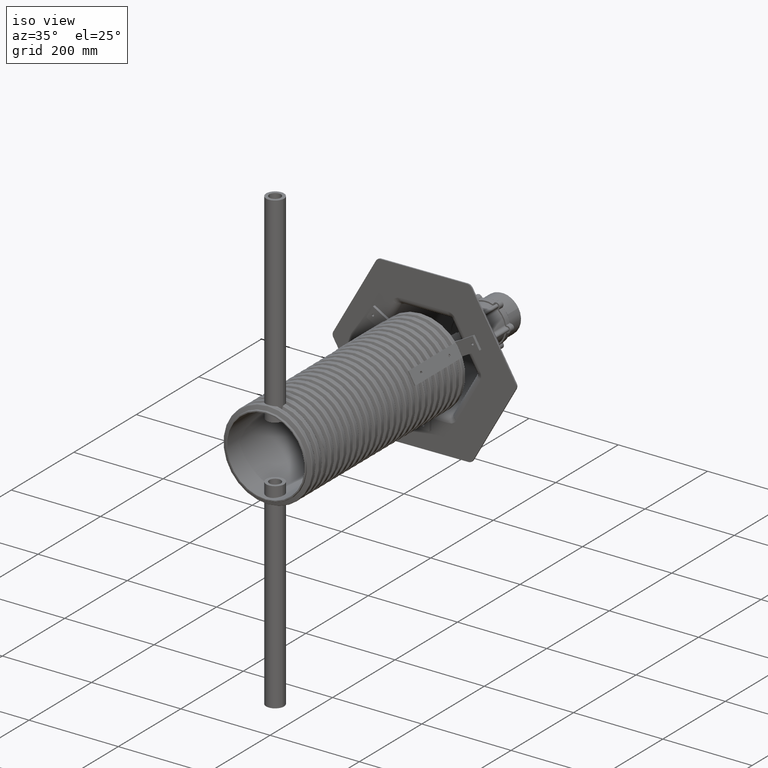
[diagram: clean part render]
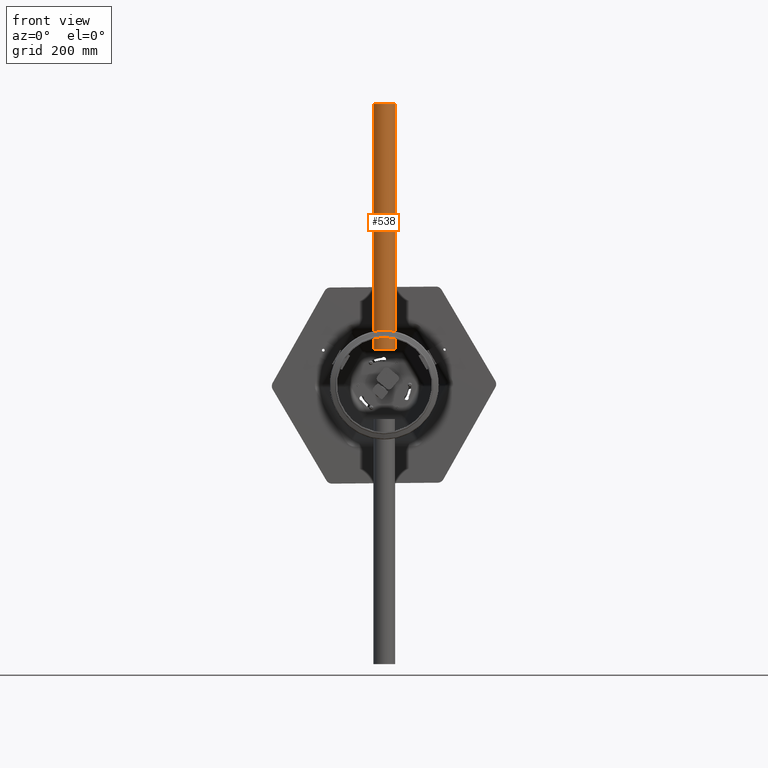
[diagram: tour spotlight — one face highlighted and labeled with its STEP entity id]
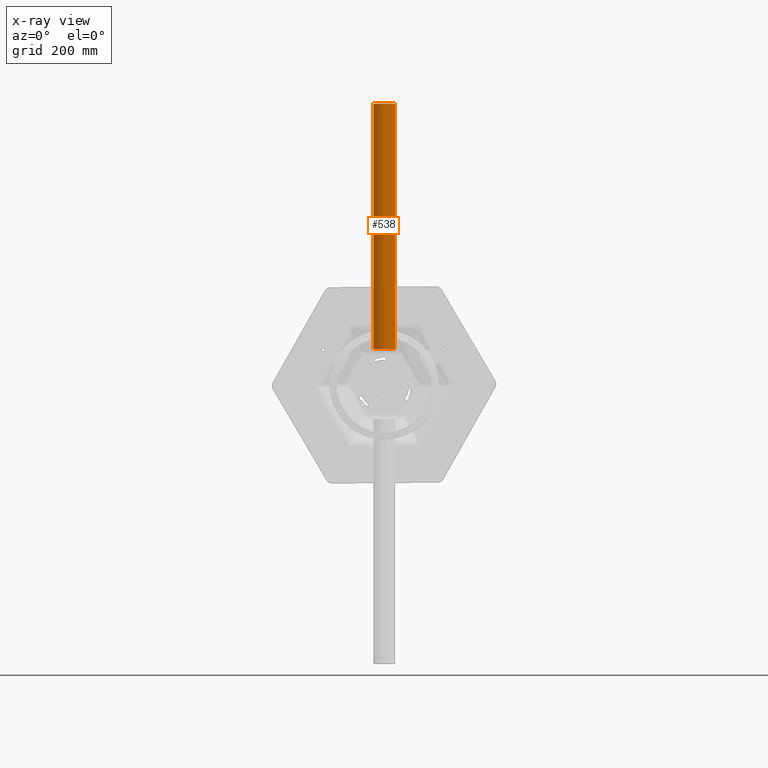
[diagram: x-ray of the same camera — body ghosted, this tour face saturated]
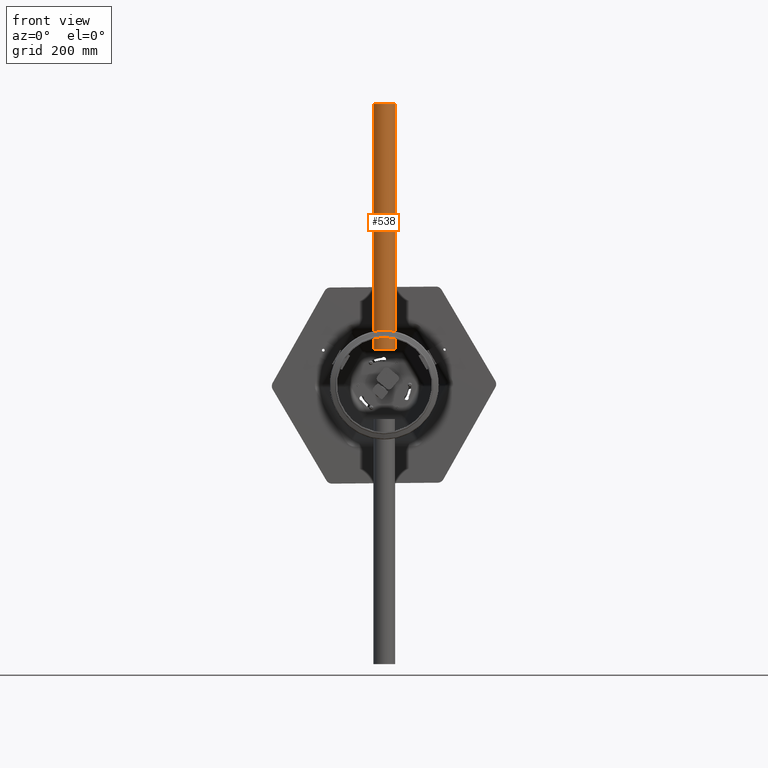
[diagram: tour spotlight — one face highlighted and labeled with its STEP entity id]
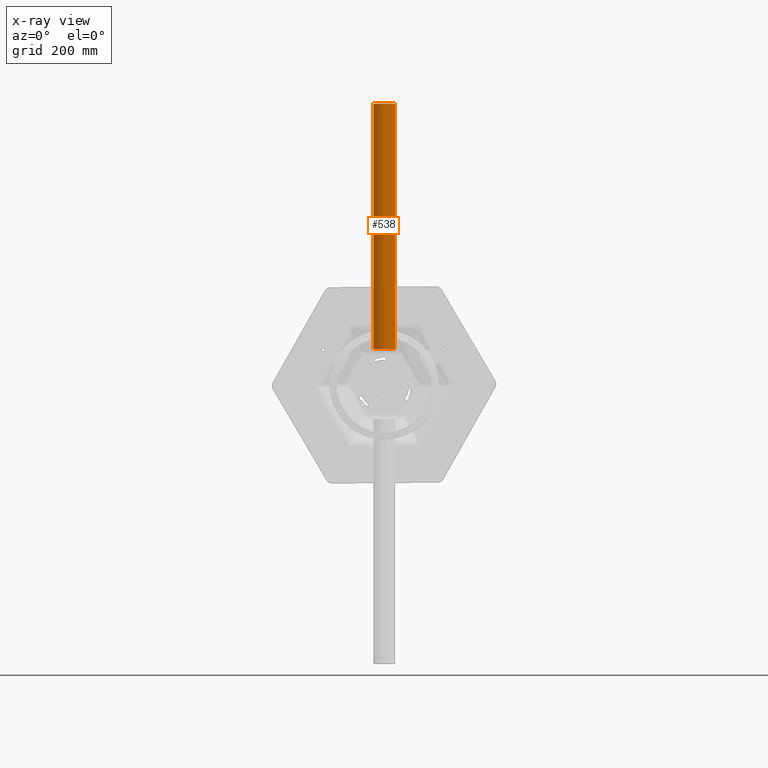
[diagram: x-ray of the same camera — body ghosted, this tour face saturated]
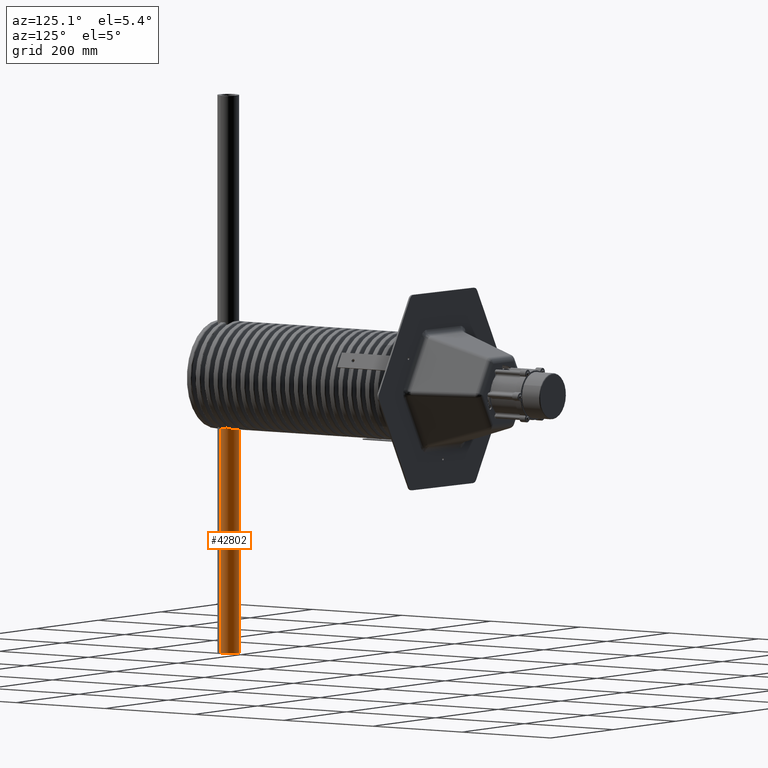
[diagram: tour spotlight — one face highlighted and labeled with its STEP entity id]
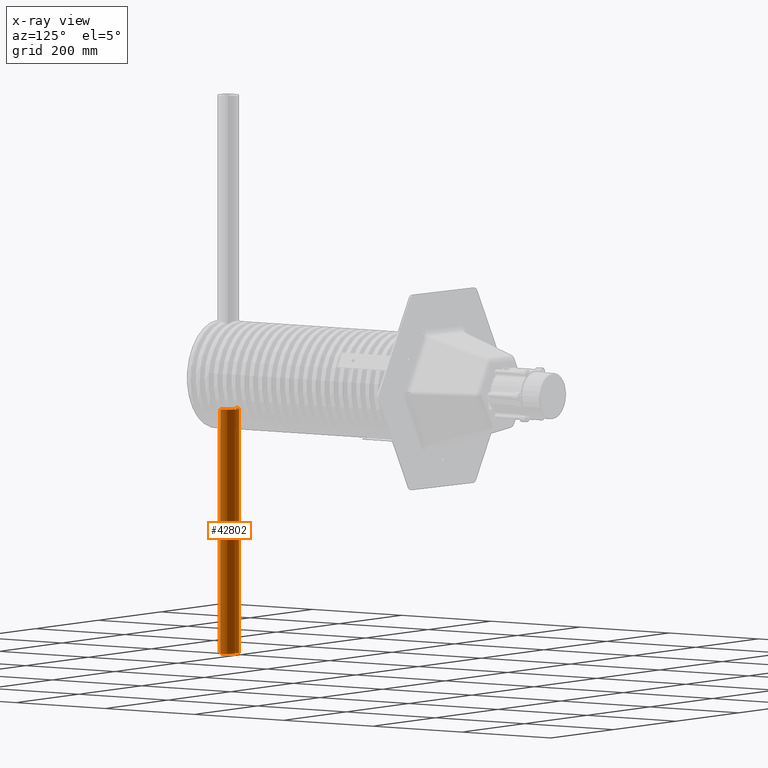
[diagram: x-ray of the same camera — body ghosted, this tour face saturated]
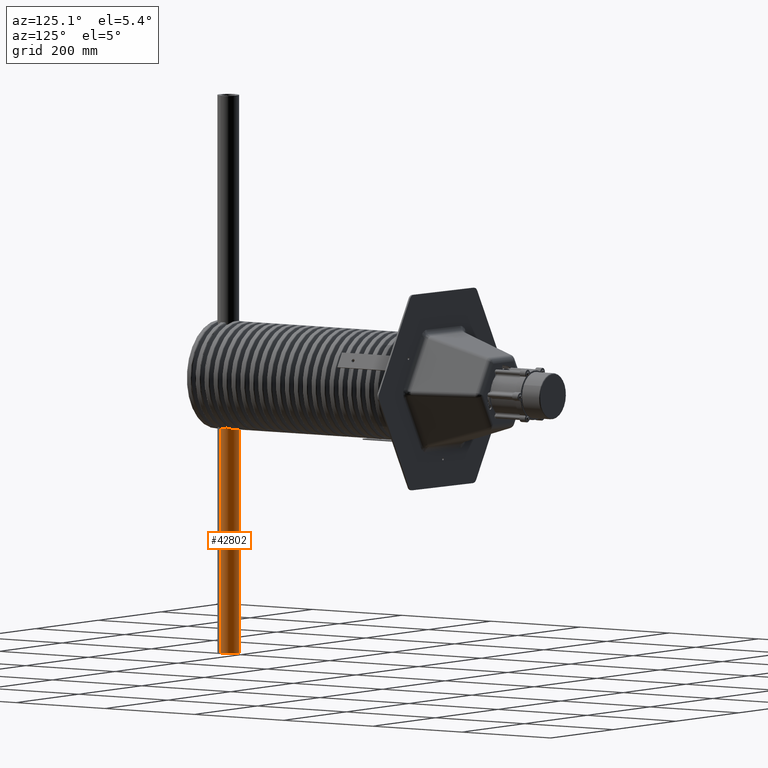
[diagram: tour spotlight — one face highlighted and labeled with its STEP entity id]
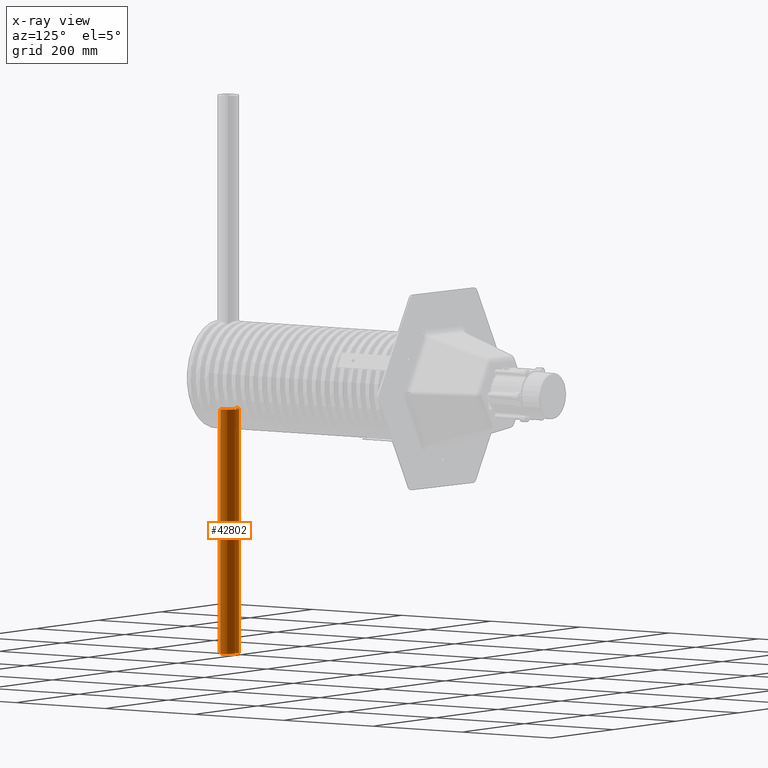
[diagram: x-ray of the same camera — body ghosted, this tour face saturated]
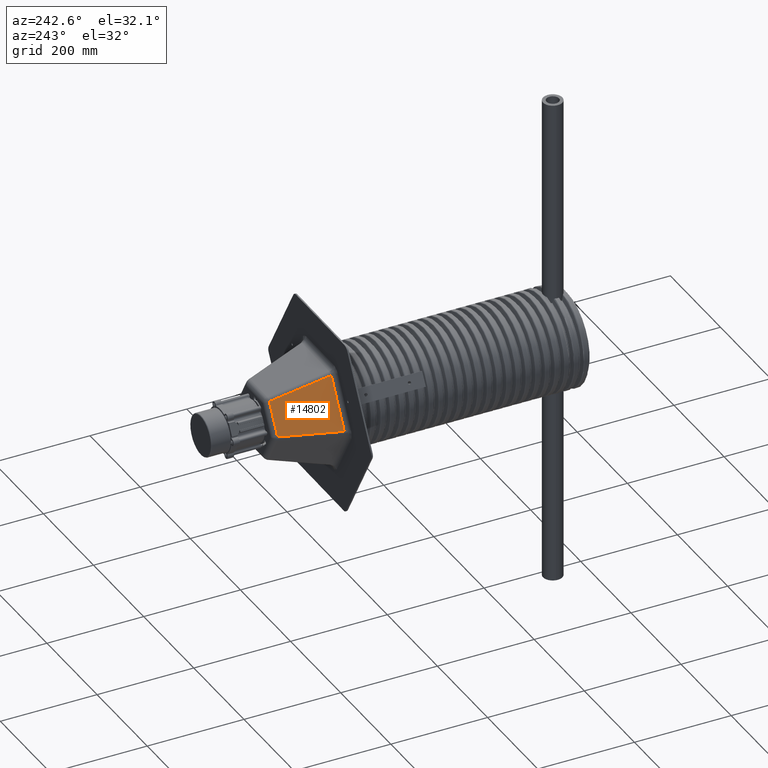
[diagram: tour spotlight — one face highlighted and labeled with its STEP entity id]
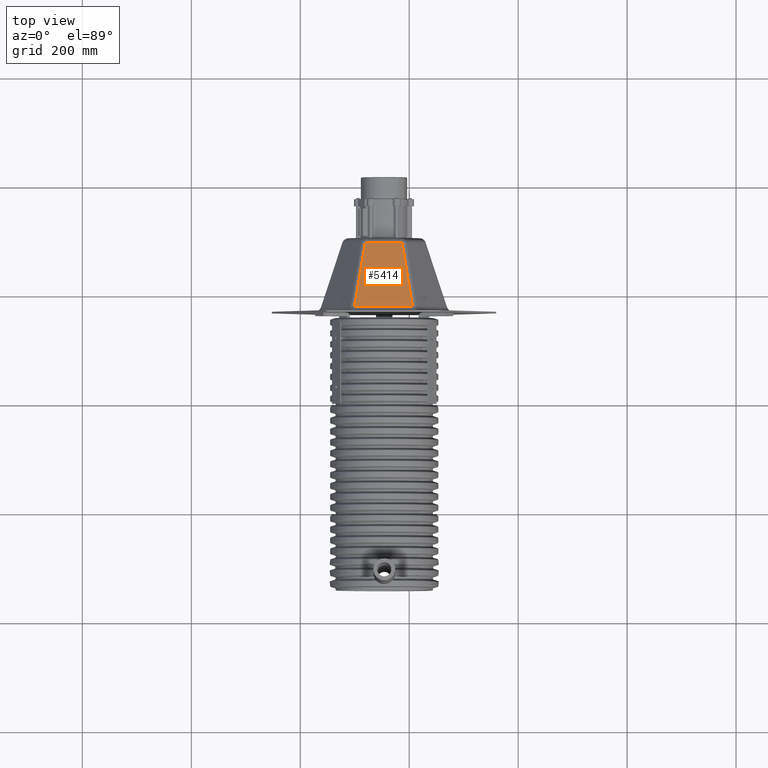
[diagram: tour spotlight — one face highlighted and labeled with its STEP entity id]
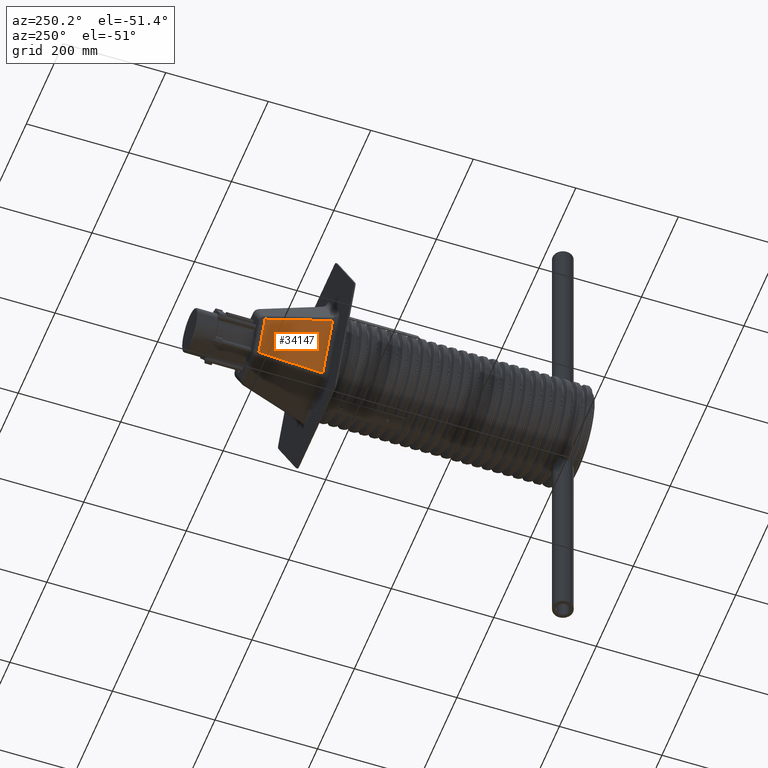
[diagram: tour spotlight — one face highlighted and labeled with its STEP entity id]
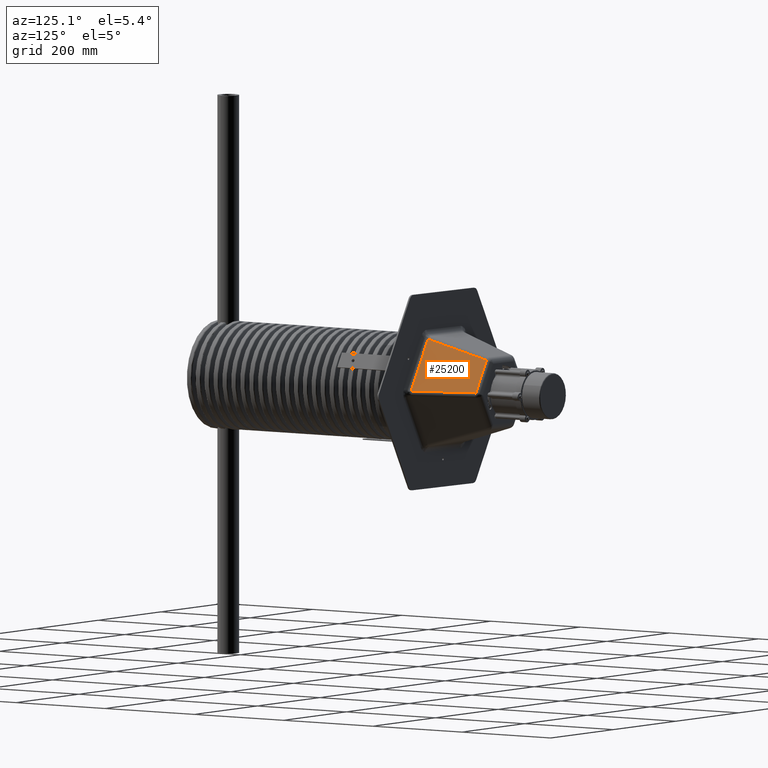
[diagram: tour spotlight — one face highlighted and labeled with its STEP entity id]
A machine part: a face-by-face anatomy tour. The part has 1955 B-rep faces; the first image is the clean iso view, then the 8 largest visible faces are spotlighted one at a time (largest first), each with its STEP entity span.

Face 1 — front view, entity #538. An x-ray twin of the same camera follows (body ghosted, this face saturated) — the face is partly hidden behind the body. In plain terms, the highlighted cylindrical surface (edge-blend (fillet) strip) has radius 20 mm, axis along (0, 0, 1).
Definition (entity closure, byte-faithful):
#479 = DIRECTION ( 'NONE',  ( 0.0000000000000000000, 0.0000000000000000000, 1.000000000000000000 ) ) ;
#538 = ADVANCED_FACE ( 'NONE', ( #38998 ), #9434, .T. ) ;
#1954 = VECTOR ( 'NONE', #20394, 1000.000000000000000 ) ;
#3044 = VERTEX_POINT ( 'NONE', #43617 ) ;
#6034 = DIRECTION ( 'NONE',  ( -0.0000000000000000000, -0.0000000000000000000, -1.000000000000000000 ) ) ;
#7050 = CARTESIAN_POINT ( 'NONE',  ( 0.0000000000000000000, 0.0000000000000000000, 450.0000000000000000 ) ) ;
#7154 = DIRECTION ( 'NONE',  ( -1.000000000000000000, 0.0000000000000000000, 0.0000000000000000000 ) ) ;
#7336 = AXIS2_PLACEMENT_3D ( 'NONE', #7050, #6034, #7154 ) ;
#7871 = CIRCLE ( 'NONE', #13518, 20.00000000000000000 ) ;
#8590 = EDGE_LOOP ( 'NONE', ( #42521, #23263, #22676, #12190 ) ) ;
#9434 = CYLINDRICAL_SURFACE ( 'NONE', #7336, 20.00000000000000000 ) ;
#12190 = ORIENTED_EDGE ( 'NONE', *, *, #45065, .T. ) ;
#12657 = DIRECTION ( 'NONE',  ( 0.0000000000000000000, 0.0000000000000000000, 1.000000000000000000 ) ) ;
#13518 = AXIS2_PLACEMENT_3D ( 'NONE', #22182, #479, #25746 ) ;
#13577 = EDGE_CURVE ( 'NONE', #45992, #3044, #37513, .T. ) ;
#15170 = DIRECTION ( 'NONE',  ( -0.0000000000000000000, -0.0000000000000000000, -1.000000000000000000 ) ) ;
#15685 = CARTESIAN_POINT ( 'NONE',  ( -20.00000000000000000, 0.0000000000000000000, 450.0000000000000000 ) ) ;
#17063 = CIRCLE ( 'NONE', #26324, 20.00000000000000000 ) ;
#20234 = VERTEX_POINT ( 'NONE', #36384 ) ;
#20394 = DIRECTION ( 'NONE',  ( -0.0000000000000000000, -0.0000000000000000000, -1.000000000000000000 ) ) ;
#22182 = CARTESIAN_POINT ( 'NONE',  ( 0.0000000000000000000, 0.0000000000000000000, 450.0000000000000000 ) ) ;
#22676 = ORIENTED_EDGE ( 'NONE', *, *, #13577, .T. ) ;
#23263 = ORIENTED_EDGE ( 'NONE', *, *, #23538, .F. ) ;
#23538 = EDGE_CURVE ( 'NONE', #45992, #39650, #7871, .T. ) ;
#25746 = DIRECTION ( 'NONE',  ( 1.000000000000000000, 0.0000000000000000000, 0.0000000000000000000 ) ) ;
#26324 = AXIS2_PLACEMENT_3D ( 'NONE', #33948, #12657, #37517 ) ;
#30637 = LINE ( 'NONE', #30928, #1954 ) ;
#30928 = CARTESIAN_POINT ( 'NONE',  ( 20.00000000000000000, 2.449293598294706500E-015, 450.0000000000000000 ) ) ;
#30945 = CARTESIAN_POINT ( 'NONE',  ( -20.00000000000000000, 0.0000000000000000000, 450.0000000000000000 ) ) ;
#33948 = CARTESIAN_POINT ( 'NONE',  ( 0.0000000000000000000, 0.0000000000000000000, 0.0000000000000000000 ) ) ;
#36384 = CARTESIAN_POINT ( 'NONE',  ( 20.00000000000000000, 2.449293598294706500E-015, 0.0000000000000000000 ) ) ;
#36402 = VECTOR ( 'NONE', #15170, 1000.000000000000000 ) ;
#37513 = LINE ( 'NONE', #15685, #36402 ) ;
#37517 = DIRECTION ( 'NONE',  ( 1.000000000000000000, 0.0000000000000000000, 0.0000000000000000000 ) ) ;
#38998 = FACE_OUTER_BOUND ( 'NONE', #8590, .T. ) ;
#39650 = VERTEX_POINT ( 'NONE', #44430 ) ;
#41896 = EDGE_CURVE ( 'NONE', #39650, #20234, #30637, .T. ) ;
#42521 = ORIENTED_EDGE ( 'NONE', *, *, #41896, .F. ) ;
#43617 = CARTESIAN_POINT ( 'NONE',  ( -20.00000000000000000, 0.0000000000000000000, 0.0000000000000000000 ) ) ;
#44430 = CARTESIAN_POINT ( 'NONE',  ( 20.00000000000000000, 2.449293598294706500E-015, 450.0000000000000000 ) ) ;
#45065 = EDGE_CURVE ( 'NONE', #3044, #20234, #17063, .T. ) ;
#45992 = VERTEX_POINT ( 'NONE', #30945 ) ;

Face 2 — front view, entity #538. An x-ray twin of the same camera follows (body ghosted, this face saturated) — the face is partly hidden behind the body. In plain terms, the highlighted cylindrical surface (edge-blend (fillet) strip) has radius 20 mm, axis along (-0, 0, -1).
Definition (entity closure, byte-faithful):
#479 = DIRECTION ( 'NONE',  ( 0.0000000000000000000, 0.0000000000000000000, 1.000000000000000000 ) ) ;
#538 = ADVANCED_FACE ( 'NONE', ( #38998 ), #9434, .T. ) ;
#1954 = VECTOR ( 'NONE', #20394, 1000.000000000000000 ) ;
#3044 = VERTEX_POINT ( 'NONE', #43617 ) ;
#6034 = DIRECTION ( 'NONE',  ( -0.0000000000000000000, -0.0000000000000000000, -1.000000000000000000 ) ) ;
#7050 = CARTESIAN_POINT ( 'NONE',  ( 0.0000000000000000000, 0.0000000000000000000, 450.0000000000000000 ) ) ;
#7154 = DIRECTION ( 'NONE',  ( -1.000000000000000000, 0.0000000000000000000, 0.0000000000000000000 ) ) ;
#7336 = AXIS2_PLACEMENT_3D ( 'NONE', #7050, #6034, #7154 ) ;
#7871 = CIRCLE ( 'NONE', #13518, 20.00000000000000000 ) ;
#8590 = EDGE_LOOP ( 'NONE', ( #42521, #23263, #22676, #12190 ) ) ;
#9434 = CYLINDRICAL_SURFACE ( 'NONE', #7336, 20.00000000000000000 ) ;
#12190 = ORIENTED_EDGE ( 'NONE', *, *, #45065, .T. ) ;
#12657 = DIRECTION ( 'NONE',  ( 0.0000000000000000000, 0.0000000000000000000, 1.000000000000000000 ) ) ;
#13518 = AXIS2_PLACEMENT_3D ( 'NONE', #22182, #479, #25746 ) ;
#13577 = EDGE_CURVE ( 'NONE', #45992, #3044, #37513, .T. ) ;
#15170 = DIRECTION ( 'NONE',  ( -0.0000000000000000000, -0.0000000000000000000, -1.000000000000000000 ) ) ;
#15685 = CARTESIAN_POINT ( 'NONE',  ( -20.00000000000000000, 0.0000000000000000000, 450.0000000000000000 ) ) ;
#17063 = CIRCLE ( 'NONE', #26324, 20.00000000000000000 ) ;
#20234 = VERTEX_POINT ( 'NONE', #36384 ) ;
#20394 = DIRECTION ( 'NONE',  ( -0.0000000000000000000, -0.0000000000000000000, -1.000000000000000000 ) ) ;
#22182 = CARTESIAN_POINT ( 'NONE',  ( 0.0000000000000000000, 0.0000000000000000000, 450.0000000000000000 ) ) ;
#22676 = ORIENTED_EDGE ( 'NONE', *, *, #13577, .T. ) ;
#23263 = ORIENTED_EDGE ( 'NONE', *, *, #23538, .F. ) ;
#23538 = EDGE_CURVE ( 'NONE', #45992, #39650, #7871, .T. ) ;
#25746 = DIRECTION ( 'NONE',  ( 1.000000000000000000, 0.0000000000000000000, 0.0000000000000000000 ) ) ;
#26324 = AXIS2_PLACEMENT_3D ( 'NONE', #33948, #12657, #37517 ) ;
#30637 = LINE ( 'NONE', #30928, #1954 ) ;
#30928 = CARTESIAN_POINT ( 'NONE',  ( 20.00000000000000000, 2.449293598294706500E-015, 450.0000000000000000 ) ) ;
#30945 = CARTESIAN_POINT ( 'NONE',  ( -20.00000000000000000, 0.0000000000000000000, 450.0000000000000000 ) ) ;
#33948 = CARTESIAN_POINT ( 'NONE',  ( 0.0000000000000000000, 0.0000000000000000000, 0.0000000000000000000 ) ) ;
#36384 = CARTESIAN_POINT ( 'NONE',  ( 20.00000000000000000, 2.449293598294706500E-015, 0.0000000000000000000 ) ) ;
#36402 = VECTOR ( 'NONE', #15170, 1000.000000000000000 ) ;
#37513 = LINE ( 'NONE', #15685, #36402 ) ;
#37517 = DIRECTION ( 'NONE',  ( 1.000000000000000000, 0.0000000000000000000, 0.0000000000000000000 ) ) ;
#38998 = FACE_OUTER_BOUND ( 'NONE', #8590, .T. ) ;
#39650 = VERTEX_POINT ( 'NONE', #44430 ) ;
#41896 = EDGE_CURVE ( 'NONE', #39650, #20234, #30637, .T. ) ;
#42521 = ORIENTED_EDGE ( 'NONE', *, *, #41896, .F. ) ;
#43617 = CARTESIAN_POINT ( 'NONE',  ( -20.00000000000000000, 0.0000000000000000000, 0.0000000000000000000 ) ) ;
#44430 = CARTESIAN_POINT ( 'NONE',  ( 20.00000000000000000, 2.449293598294706500E-015, 450.0000000000000000 ) ) ;
#45065 = EDGE_CURVE ( 'NONE', #3044, #20234, #17063, .T. ) ;
#45992 = VERTEX_POINT ( 'NONE', #30945 ) ;

Face 3 — auxiliary view, entity #42802. An x-ray twin of the same camera follows (body ghosted, this face saturated) — the face is partly hidden behind the body. In plain terms, the highlighted cylindrical surface (edge-blend (fillet) strip) has radius 20 mm, axis along (-0, 0, -1).
Definition (entity closure, byte-faithful):
#449 = AXIS2_PLACEMENT_3D ( 'NONE', #2529, #27725, #6163 ) ;
#1954 = VECTOR ( 'NONE', #20394, 1000.000000000000000 ) ;
#2529 = CARTESIAN_POINT ( 'NONE',  ( 0.0000000000000000000, 0.0000000000000000000, 450.0000000000000000 ) ) ;
#3044 = VERTEX_POINT ( 'NONE', #43617 ) ;
#6163 = DIRECTION ( 'NONE',  ( 1.000000000000000000, 0.0000000000000000000, 0.0000000000000000000 ) ) ;
#6882 = ORIENTED_EDGE ( 'NONE', *, *, #41412, .F. ) ;
#7152 = ORIENTED_EDGE ( 'NONE', *, *, #13577, .F. ) ;
#7198 = AXIS2_PLACEMENT_3D ( 'NONE', #37456, #41053, #12590 ) ;
#7623 = ORIENTED_EDGE ( 'NONE', *, *, #41896, .T. ) ;
#8786 = DIRECTION ( 'NONE',  ( 0.0000000000000000000, 0.0000000000000000000, 1.000000000000000000 ) ) ;
#12590 = DIRECTION ( 'NONE',  ( -1.000000000000000000, 0.0000000000000000000, 0.0000000000000000000 ) ) ;
#13540 = EDGE_LOOP ( 'NONE', ( #6882, #7623, #41140, #7152 ) ) ;
#13577 = EDGE_CURVE ( 'NONE', #45992, #3044, #37513, .T. ) ;
#15170 = DIRECTION ( 'NONE',  ( -0.0000000000000000000, -0.0000000000000000000, -1.000000000000000000 ) ) ;
#15685 = CARTESIAN_POINT ( 'NONE',  ( -20.00000000000000000, 0.0000000000000000000, 450.0000000000000000 ) ) ;
#17194 = CYLINDRICAL_SURFACE ( 'NONE', #7198, 20.00000000000000000 ) ;
#20234 = VERTEX_POINT ( 'NONE', #36384 ) ;
#20394 = DIRECTION ( 'NONE',  ( -0.0000000000000000000, -0.0000000000000000000, -1.000000000000000000 ) ) ;
#24599 = CIRCLE ( 'NONE', #449, 20.00000000000000000 ) ;
#27725 = DIRECTION ( 'NONE',  ( 0.0000000000000000000, 0.0000000000000000000, 1.000000000000000000 ) ) ;
#30084 = AXIS2_PLACEMENT_3D ( 'NONE', #30257, #8786, #33760 ) ;
#30257 = CARTESIAN_POINT ( 'NONE',  ( 0.0000000000000000000, 0.0000000000000000000, 0.0000000000000000000 ) ) ;
#30637 = LINE ( 'NONE', #30928, #1954 ) ;
#30928 = CARTESIAN_POINT ( 'NONE',  ( 20.00000000000000000, 2.449293598294706500E-015, 450.0000000000000000 ) ) ;
#30945 = CARTESIAN_POINT ( 'NONE',  ( -20.00000000000000000, 0.0000000000000000000, 450.0000000000000000 ) ) ;
#33760 = DIRECTION ( 'NONE',  ( 1.000000000000000000, 0.0000000000000000000, 0.0000000000000000000 ) ) ;
#36384 = CARTESIAN_POINT ( 'NONE',  ( 20.00000000000000000, 2.449293598294706500E-015, 0.0000000000000000000 ) ) ;
#36402 = VECTOR ( 'NONE', #15170, 1000.000000000000000 ) ;
#36591 = CIRCLE ( 'NONE', #30084, 20.00000000000000000 ) ;
#37456 = CARTESIAN_POINT ( 'NONE',  ( 0.0000000000000000000, 0.0000000000000000000, 450.0000000000000000 ) ) ;
#37513 = LINE ( 'NONE', #15685, #36402 ) ;
#38270 = FACE_OUTER_BOUND ( 'NONE', #13540, .T. ) ;
#39650 = VERTEX_POINT ( 'NONE', #44430 ) ;
#41053 = DIRECTION ( 'NONE',  ( -0.0000000000000000000, -0.0000000000000000000, -1.000000000000000000 ) ) ;
#41140 = ORIENTED_EDGE ( 'NONE', *, *, #43772, .T. ) ;
#41412 = EDGE_CURVE ( 'NONE', #39650, #45992, #24599, .T. ) ;
#41896 = EDGE_CURVE ( 'NONE', #39650, #20234, #30637, .T. ) ;
#42802 = ADVANCED_FACE ( 'NONE', ( #38270 ), #17194, .T. ) ;
#43617 = CARTESIAN_POINT ( 'NONE',  ( -20.00000000000000000, 0.0000000000000000000, 0.0000000000000000000 ) ) ;
#43772 = EDGE_CURVE ( 'NONE', #20234, #3044, #36591, .T. ) ;
#44430 = CARTESIAN_POINT ( 'NONE',  ( 20.00000000000000000, 2.449293598294706500E-015, 450.0000000000000000 ) ) ;
#45992 = VERTEX_POINT ( 'NONE', #30945 ) ;

Face 4 — auxiliary view, entity #42802. An x-ray twin of the same camera follows (body ghosted, this face saturated) — the face is partly hidden behind the body. In plain terms, the highlighted cylindrical surface (edge-blend (fillet) strip) has radius 20 mm, axis along (0, 0, 1).
Definition (entity closure, byte-faithful):
#449 = AXIS2_PLACEMENT_3D ( 'NONE', #2529, #27725, #6163 ) ;
#1954 = VECTOR ( 'NONE', #20394, 1000.000000000000000 ) ;
#2529 = CARTESIAN_POINT ( 'NONE',  ( 0.0000000000000000000, 0.0000000000000000000, 450.0000000000000000 ) ) ;
#3044 = VERTEX_POINT ( 'NONE', #43617 ) ;
#6163 = DIRECTION ( 'NONE',  ( 1.000000000000000000, 0.0000000000000000000, 0.0000000000000000000 ) ) ;
#6882 = ORIENTED_EDGE ( 'NONE', *, *, #41412, .F. ) ;
#7152 = ORIENTED_EDGE ( 'NONE', *, *, #13577, .F. ) ;
#7198 = AXIS2_PLACEMENT_3D ( 'NONE', #37456, #41053, #12590 ) ;
#7623 = ORIENTED_EDGE ( 'NONE', *, *, #41896, .T. ) ;
#8786 = DIRECTION ( 'NONE',  ( 0.0000000000000000000, 0.0000000000000000000, 1.000000000000000000 ) ) ;
#12590 = DIRECTION ( 'NONE',  ( -1.000000000000000000, 0.0000000000000000000, 0.0000000000000000000 ) ) ;
#13540 = EDGE_LOOP ( 'NONE', ( #6882, #7623, #41140, #7152 ) ) ;
#13577 = EDGE_CURVE ( 'NONE', #45992, #3044, #37513, .T. ) ;
#15170 = DIRECTION ( 'NONE',  ( -0.0000000000000000000, -0.0000000000000000000, -1.000000000000000000 ) ) ;
#15685 = CARTESIAN_POINT ( 'NONE',  ( -20.00000000000000000, 0.0000000000000000000, 450.0000000000000000 ) ) ;
#17194 = CYLINDRICAL_SURFACE ( 'NONE', #7198, 20.00000000000000000 ) ;
#20234 = VERTEX_POINT ( 'NONE', #36384 ) ;
#20394 = DIRECTION ( 'NONE',  ( -0.0000000000000000000, -0.0000000000000000000, -1.000000000000000000 ) ) ;
#24599 = CIRCLE ( 'NONE', #449, 20.00000000000000000 ) ;
#27725 = DIRECTION ( 'NONE',  ( 0.0000000000000000000, 0.0000000000000000000, 1.000000000000000000 ) ) ;
#30084 = AXIS2_PLACEMENT_3D ( 'NONE', #30257, #8786, #33760 ) ;
#30257 = CARTESIAN_POINT ( 'NONE',  ( 0.0000000000000000000, 0.0000000000000000000, 0.0000000000000000000 ) ) ;
#30637 = LINE ( 'NONE', #30928, #1954 ) ;
#30928 = CARTESIAN_POINT ( 'NONE',  ( 20.00000000000000000, 2.449293598294706500E-015, 450.0000000000000000 ) ) ;
#30945 = CARTESIAN_POINT ( 'NONE',  ( -20.00000000000000000, 0.0000000000000000000, 450.0000000000000000 ) ) ;
#33760 = DIRECTION ( 'NONE',  ( 1.000000000000000000, 0.0000000000000000000, 0.0000000000000000000 ) ) ;
#36384 = CARTESIAN_POINT ( 'NONE',  ( 20.00000000000000000, 2.449293598294706500E-015, 0.0000000000000000000 ) ) ;
#36402 = VECTOR ( 'NONE', #15170, 1000.000000000000000 ) ;
#36591 = CIRCLE ( 'NONE', #30084, 20.00000000000000000 ) ;
#37456 = CARTESIAN_POINT ( 'NONE',  ( 0.0000000000000000000, 0.0000000000000000000, 450.0000000000000000 ) ) ;
#37513 = LINE ( 'NONE', #15685, #36402 ) ;
#38270 = FACE_OUTER_BOUND ( 'NONE', #13540, .T. ) ;
#39650 = VERTEX_POINT ( 'NONE', #44430 ) ;
#41053 = DIRECTION ( 'NONE',  ( -0.0000000000000000000, -0.0000000000000000000, -1.000000000000000000 ) ) ;
#41140 = ORIENTED_EDGE ( 'NONE', *, *, #43772, .T. ) ;
#41412 = EDGE_CURVE ( 'NONE', #39650, #45992, #24599, .T. ) ;
#41896 = EDGE_CURVE ( 'NONE', #39650, #20234, #30637, .T. ) ;
#42802 = ADVANCED_FACE ( 'NONE', ( #38270 ), #17194, .T. ) ;
#43617 = CARTESIAN_POINT ( 'NONE',  ( -20.00000000000000000, 0.0000000000000000000, 0.0000000000000000000 ) ) ;
#43772 = EDGE_CURVE ( 'NONE', #20234, #3044, #36591, .T. ) ;
#44430 = CARTESIAN_POINT ( 'NONE',  ( 20.00000000000000000, 2.449293598294706500E-015, 450.0000000000000000 ) ) ;
#45992 = VERTEX_POINT ( 'NONE', #30945 ) ;

Face 5 — auxiliary view, entity #14802. In plain terms, the highlighted planar face has unit normal (-0.8369, 0.2752, 0.4731).
Definition (entity closure, byte-faithful):
#2825 = VECTOR ( 'NONE', #18477, 1000.000000000000000 ) ;
#3912 = CARTESIAN_POINT ( 'NONE',  ( -67.61006919904154700, -33.48409008836433300, 129.3021738684422200 ) ) ;
#4251 = LINE ( 'NONE', #20892, #41198 ) ;
#4614 = CARTESIAN_POINT ( 'NONE',  ( -101.2721832251787900, 52.91892068284654000, 11.69782613155779000 ) ) ;
#5256 = VERTEX_POINT ( 'NONE', #29083 ) ;
#7147 = EDGE_CURVE ( 'NONE', #7275, #35547, #41656, .T. ) ;
#7275 = VERTEX_POINT ( 'NONE', #4614 ) ;
#7795 = DIRECTION ( 'NONE',  ( 4.736361296511237500E-016, -1.000000000000000000, 5.229490850100713400E-033 ) ) ;
#8550 = CARTESIAN_POINT ( 'NONE',  ( -101.2721832251787400, -54.35628911913329400, 11.69782613155778600 ) ) ;
#10811 = CARTESIAN_POINT ( 'NONE',  ( -101.2721832251787400, -52.91892068284656100, 11.69782613155779000 ) ) ;
#11385 = CARTESIAN_POINT ( 'NONE',  ( -67.61006919904156100, -3.202257150087870200E-014, 129.3021738684422200 ) ) ;
#12497 = FACE_OUTER_BOUND ( 'NONE', #40201, .T. ) ;
#13179 = ORIENTED_EDGE ( 'NONE', *, *, #41310, .T. ) ;
#13946 = ORIENTED_EDGE ( 'NONE', *, *, #22284, .T. ) ;
#14802 = ADVANCED_FACE ( 'NONE', ( #12497 ), #27328, .T. ) ;
#18241 = AXIS2_PLACEMENT_3D ( 'NONE', #26872, #26815, #26752 ) ;
#18477 = DIRECTION ( 'NONE',  ( -4.736361296511237500E-016, 1.000000000000000000, -2.054785618447901200E-033 ) ) ;
#20460 = ORIENTED_EDGE ( 'NONE', *, *, #41447, .T. ) ;
#20892 = CARTESIAN_POINT ( 'NONE',  ( -94.55410107692041800, 49.04023414611154400, 35.16859414319463200 ) ) ;
#22284 = EDGE_CURVE ( 'NONE', #46259, #5256, #31482, .T. ) ;
#22380 = CARTESIAN_POINT ( 'NONE',  ( -94.55410107692037500, -49.04023414611156500, 35.16859414319461800 ) ) ;
#26752 = DIRECTION ( 'NONE',  ( 0.2751811557035178700, 0.0000000000000000000, 0.9613923920781131100 ) ) ;
#26815 = DIRECTION ( 'NONE',  ( -0.9613923920781131100, -4.553501716599131900E-016, 0.2751811557035178700 ) ) ;
#26872 = CARTESIAN_POINT ( 'NONE',  ( -96.69812332812046000, -4.579972487765802000E-014, 27.67808602507796000 ) ) ;
#27328 = PLANE ( 'NONE',  #18241 ) ;
#29083 = CARTESIAN_POINT ( 'NONE',  ( -67.61006919904157500, 33.48409008836432600, 129.3021738684422200 ) ) ;
#31482 = LINE ( 'NONE', #11385, #2825 ) ;
#35547 = VERTEX_POINT ( 'NONE', #10811 ) ;
#37299 = VECTOR ( 'NONE', #43510, 1000.000000000000000 ) ;
#38402 = LINE ( 'NONE', #22380, #37299 ) ;
#40201 = EDGE_LOOP ( 'NONE', ( #20460, #41998, #13179, #13946 ) ) ;
#40527 = VECTOR ( 'NONE', #7795, 1000.000000000000000 ) ;
#41198 = VECTOR ( 'NONE', #45677, 1000.000000000000100 ) ;
#41310 = EDGE_CURVE ( 'NONE', #35547, #46259, #38402, .T. ) ;
#41447 = EDGE_CURVE ( 'NONE', #5256, #7275, #4251, .T. ) ;
#41656 = LINE ( 'NONE', #8550, #40527 ) ;
#41998 = ORIENTED_EDGE ( 'NONE', *, *, #7147, .T. ) ;
#43510 = DIRECTION ( 'NONE',  ( 0.2717725502388411700, 0.1569079550387463800, 0.9494838464040530300 ) ) ;
#45677 = DIRECTION ( 'NONE',  ( -0.2717725502388413400, 0.1569079550387461900, -0.9494838464040530300 ) ) ;
#46259 = VERTEX_POINT ( 'NONE', #3912 ) ;

Face 6 — top view, entity #5414. In plain terms, the highlighted planar face has unit normal (-0.0088, 0.2752, 0.9614).
Definition (entity closure, byte-faithful):
#99 = PLANE ( 'NONE',  #42315 ) ;
#840 = CARTESIAN_POINT ( 'NONE',  ( -62.80310723865097300, -41.80999243381167900, 129.3021738684422200 ) ) ;
#1424 = VECTOR ( 'NONE', #36357, 1000.000000000000100 ) ;
#4901 = CARTESIAN_POINT ( 'NONE',  ( -3.562164379968374200, -114.8824279292837200, 11.69782613155778300 ) ) ;
#5414 = ADVANCED_FACE ( 'NONE', ( #17390 ), #99, .T. ) ;
#7552 = ORIENTED_EDGE ( 'NONE', *, *, #27854, .T. ) ;
#8582 = DIRECTION ( 'NONE',  ( 0.8660254037844387100, -0.4999999999999998900, 1.330299363687802000E-017 ) ) ;
#9166 = DIRECTION ( 'NONE',  ( -0.8660254037844387100, 0.4999999999999998900, -1.431331213441632600E-017 ) ) ;
#9385 = CARTESIAN_POINT ( 'NONE',  ( -33.80503459952078100, -58.55203747799381400, 129.3021738684422200 ) ) ;
#10840 = ORIENTED_EDGE ( 'NONE', *, *, #18137, .T. ) ;
#11105 = LINE ( 'NONE', #36769, #1424 ) ;
#12340 = EDGE_CURVE ( 'NONE', #12916, #14115, #21066, .T. ) ;
#12635 = DIRECTION ( 'NONE',  ( -0.4806961960390563300, -0.8325902345447352400, 0.2751811557035180900 ) ) ;
#12916 = VERTEX_POINT ( 'NONE', #840 ) ;
#14079 = CARTESIAN_POINT ( 'NONE',  ( -4.806961960390583300, -114.1637437111403700, 11.69782613155778400 ) ) ;
#14115 = VERTEX_POINT ( 'NONE', #23354 ) ;
#14391 = DIRECTION ( 'NONE',  ( 0.8660254037844387100, -0.4999999999999998300, 0.0000000000000000000 ) ) ;
#14734 = VECTOR ( 'NONE', #8582, 1000.000000000000100 ) ;
#15774 = VERTEX_POINT ( 'NONE', #40461 ) ;
#17036 = EDGE_CURVE ( 'NONE', #15774, #12916, #37404, .T. ) ;
#17362 = DIRECTION ( 'NONE',  ( -0.2717725502388412300, -0.1569079550387464100, -0.9494838464040530300 ) ) ;
#17390 = FACE_OUTER_BOUND ( 'NONE', #20032, .T. ) ;
#18137 = EDGE_CURVE ( 'NONE', #24535, #15774, #11105, .T. ) ;
#18396 = CARTESIAN_POINT ( 'NONE',  ( -89.74713911652979400, -57.36613649155892600, 35.16859414319461800 ) ) ;
#19935 = VECTOR ( 'NONE', #17362, 999.9999999999998900 ) ;
#20032 = EDGE_LOOP ( 'NONE', ( #27198, #7552, #10840, #40001 ) ) ;
#21066 = LINE ( 'NONE', #18396, #19935 ) ;
#23164 = CARTESIAN_POINT ( 'NONE',  ( -48.34906166406023000, -83.74303130043298900, 27.67808602507798100 ) ) ;
#23354 = CARTESIAN_POINT ( 'NONE',  ( -96.46522126478815600, -61.24482302829392200, 11.69782613155777400 ) ) ;
#24535 = VERTEX_POINT ( 'NONE', #14079 ) ;
#27198 = ORIENTED_EDGE ( 'NONE', *, *, #12340, .T. ) ;
#27854 = EDGE_CURVE ( 'NONE', #14115, #24535, #34693, .T. ) ;
#28019 = VECTOR ( 'NONE', #9166, 1000.000000000000100 ) ;
#34693 = LINE ( 'NONE', #4901, #14734 ) ;
#36357 = DIRECTION ( 'NONE',  ( -5.892821777244529500E-017, 0.3138159100774924300, 0.9494838464040529200 ) ) ;
#36769 = CARTESIAN_POINT ( 'NONE',  ( -4.806961960390585100, -106.4063706376703800, 35.16859414319463900 ) ) ;
#37404 = LINE ( 'NONE', #9385, #28019 ) ;
#40001 = ORIENTED_EDGE ( 'NONE', *, *, #17036, .T. ) ;
#40461 = CARTESIAN_POINT ( 'NONE',  ( -4.806961960390588700, -75.29408252217594100, 129.3021738684422200 ) ) ;
#42315 = AXIS2_PLACEMENT_3D ( 'NONE', #23164, #12635, #14391 ) ;

Face 7 — auxiliary view, entity #34147. In plain terms, the highlighted planar face has unit normal (-0.8282, 0.2752, -0.4883).
Definition (entity closure, byte-faithful):
#797 = ORIENTED_EDGE ( 'NONE', *, *, #21527, .T. ) ;
#3741 = VECTOR ( 'NONE', #8860, 999.9999999999998900 ) ;
#4673 = CARTESIAN_POINT ( 'NONE',  ( -48.34906166406021600, 83.74303130043300300, 27.67808602507797000 ) ) ;
#8370 = DIRECTION ( 'NONE',  ( -0.8660254037844388200, -0.4999999999999997200, 0.0000000000000000000 ) ) ;
#8860 = DIRECTION ( 'NONE',  ( 0.2717725502388413400, -0.1569079550387461900, 0.9494838464040530300 ) ) ;
#9015 = CARTESIAN_POINT ( 'NONE',  ( -89.74713911652985100, 57.36613649155890500, 35.16859414319462500 ) ) ;
#9156 = CARTESIAN_POINT ( 'NONE',  ( -4.806961960390556700, 114.1637437111403700, 11.69782613155779000 ) ) ;
#9243 = ORIENTED_EDGE ( 'NONE', *, *, #37387, .T. ) ;
#9712 = DIRECTION ( 'NONE',  ( 0.8660254037844388200, 0.4999999999999997200, -1.854289510869136600E-019 ) ) ;
#10211 = CARTESIAN_POINT ( 'NONE',  ( -62.80310723865100200, 41.80999243381168600, 129.3021738684422200 ) ) ;
#10223 = ORIENTED_EDGE ( 'NONE', *, *, #43914, .T. ) ;
#12584 = DIRECTION ( 'NONE',  ( 2.775557561562891400E-017, 0.3138159100774922100, -0.9494838464040530300 ) ) ;
#13426 = ORIENTED_EDGE ( 'NONE', *, *, #14982, .T. ) ;
#14982 = EDGE_CURVE ( 'NONE', #25665, #45904, #15324, .T. ) ;
#15324 = LINE ( 'NONE', #18473, #20346 ) ;
#17684 = LINE ( 'NONE', #44596, #35407 ) ;
#18085 = DIRECTION ( 'NONE',  ( -0.8660254037844388200, -0.4999999999999997200, 1.972629113372267700E-018 ) ) ;
#18473 = CARTESIAN_POINT ( 'NONE',  ( -97.71001884521045600, 60.52613881015052000, 11.69782613155778800 ) ) ;
#20346 = VECTOR ( 'NONE', #18085, 1000.000000000000000 ) ;
#21527 = EDGE_CURVE ( 'NONE', #39198, #25665, #17684, .T. ) ;
#25665 = VERTEX_POINT ( 'NONE', #9156 ) ;
#26149 = PLANE ( 'NONE',  #31758 ) ;
#27770 = VERTEX_POINT ( 'NONE', #10211 ) ;
#28814 = EDGE_LOOP ( 'NONE', ( #797, #13426, #9243, #10223 ) ) ;
#29844 = DIRECTION ( 'NONE',  ( -0.4806961960390562800, 0.8325902345447354600, 0.2751811557035179200 ) ) ;
#31758 = AXIS2_PLACEMENT_3D ( 'NONE', #4673, #29844, #8370 ) ;
#32365 = LINE ( 'NONE', #9015, #3741 ) ;
#33869 = CARTESIAN_POINT ( 'NONE',  ( -96.46522126478822700, 61.24482302829390100, 11.69782613155777000 ) ) ;
#34147 = ADVANCED_FACE ( 'NONE', ( #36497 ), #26149, .T. ) ;
#34902 = LINE ( 'NONE', #38075, #43224 ) ;
#35407 = VECTOR ( 'NONE', #12584, 1000.000000000000000 ) ;
#36497 = FACE_OUTER_BOUND ( 'NONE', #28814, .T. ) ;
#37387 = EDGE_CURVE ( 'NONE', #45904, #27770, #32365, .T. ) ;
#38075 = CARTESIAN_POINT ( 'NONE',  ( -33.80503459952077300, 58.55203747799383500, 129.3021738684422200 ) ) ;
#39198 = VERTEX_POINT ( 'NONE', #41373 ) ;
#41373 = CARTESIAN_POINT ( 'NONE',  ( -4.806961960390543400, 75.29408252217598400, 129.3021738684422200 ) ) ;
#43224 = VECTOR ( 'NONE', #9712, 1000.000000000000000 ) ;
#43914 = EDGE_CURVE ( 'NONE', #27770, #39198, #34902, .T. ) ;
#44596 = CARTESIAN_POINT ( 'NONE',  ( -4.806961960390557600, 106.4063706376703900, 35.16859414319461800 ) ) ;
#45904 = VERTEX_POINT ( 'NONE', #33869 ) ;

Face 8 — auxiliary view, entity #25200. In plain terms, the highlighted planar face has unit normal (0.8282, 0.2752, 0.4883).
Definition (entity closure, byte-faithful):
#264 = CARTESIAN_POINT ( 'NONE',  ( 62.80310723865095900, -41.80999243381165800, 129.3021738684422200 ) ) ;
#1065 = CARTESIAN_POINT ( 'NONE',  ( 33.80503459952076600, -58.55203747799380000, 129.3021738684422200 ) ) ;
#1397 = VERTEX_POINT ( 'NONE', #25643 ) ;
#1415 = DIRECTION ( 'NONE',  ( -0.8660254037844387100, -0.4999999999999998900, -1.156741468196027700E-018 ) ) ;
#3722 = CARTESIAN_POINT ( 'NONE',  ( 4.806961960390529100, -75.29408252217595500, 129.3021738684422200 ) ) ;
#4429 = PLANE ( 'NONE',  #11142 ) ;
#5380 = VERTEX_POINT ( 'NONE', #264 ) ;
#6754 = VECTOR ( 'NONE', #1415, 1000.000000000000000 ) ;
#6862 = CARTESIAN_POINT ( 'NONE',  ( 97.71001884521035700, -60.52613881015055600, 11.69782613155778400 ) ) ;
#7042 = VECTOR ( 'NONE', #38921, 1000.000000000000100 ) ;
#7207 = DIRECTION ( 'NONE',  ( 0.8660254037844387100, 0.4999999999999998900, 2.943941630481392400E-018 ) ) ;
#7763 = ORIENTED_EDGE ( 'NONE', *, *, #25786, .T. ) ;
#8105 = ORIENTED_EDGE ( 'NONE', *, *, #14326, .T. ) ;
#10430 = CARTESIAN_POINT ( 'NONE',  ( 4.806961960390536200, -106.4063706376703900, 35.16859414319463900 ) ) ;
#11142 = AXIS2_PLACEMENT_3D ( 'NONE', #19035, #43810, #22657 ) ;
#12298 = FACE_OUTER_BOUND ( 'NONE', #45261, .T. ) ;
#13678 = EDGE_CURVE ( 'NONE', #1397, #44748, #15966, .T. ) ;
#14326 = EDGE_CURVE ( 'NONE', #5380, #27253, #44743, .T. ) ;
#14721 = EDGE_CURVE ( 'NONE', #44748, #5380, #17025, .T. ) ;
#14843 = VECTOR ( 'NONE', #7207, 1000.000000000000000 ) ;
#15966 = LINE ( 'NONE', #6862, #14843 ) ;
#17025 = LINE ( 'NONE', #33870, #44198 ) ;
#17886 = CARTESIAN_POINT ( 'NONE',  ( 96.46522126478815600, -61.24482302829392200, 11.69782613155777000 ) ) ;
#19035 = CARTESIAN_POINT ( 'NONE',  ( 48.34906166406022300, -83.74303130043297500, 27.67808602507798500 ) ) ;
#22657 = DIRECTION ( 'NONE',  ( 0.8660254037844387100, 0.4999999999999998900, 0.0000000000000000000 ) ) ;
#25200 = ADVANCED_FACE ( 'NONE', ( #12298 ), #4429, .T. ) ;
#25643 = CARTESIAN_POINT ( 'NONE',  ( 4.806961960390538000, -114.1637437111403800, 11.69782613155778400 ) ) ;
#25786 = EDGE_CURVE ( 'NONE', #27253, #1397, #27319, .T. ) ;
#27253 = VERTEX_POINT ( 'NONE', #3722 ) ;
#27319 = LINE ( 'NONE', #10430, #7042 ) ;
#30938 = ORIENTED_EDGE ( 'NONE', *, *, #14721, .T. ) ;
#31394 = DIRECTION ( 'NONE',  ( -0.2717725502388410600, 0.1569079550387465200, 0.9494838464040530300 ) ) ;
#33870 = CARTESIAN_POINT ( 'NONE',  ( 89.74713911652979400, -57.36613649155891900, 35.16859414319461100 ) ) ;
#38921 = DIRECTION ( 'NONE',  ( 8.668379338807419600E-017, -0.3138159100774924300, -0.9494838464040529200 ) ) ;
#40160 = ORIENTED_EDGE ( 'NONE', *, *, #13678, .T. ) ;
#43810 = DIRECTION ( 'NONE',  ( 0.4806961960390563900, -0.8325902345447352400, 0.2751811557035181400 ) ) ;
#44198 = VECTOR ( 'NONE', #31394, 999.9999999999998900 ) ;
#44743 = LINE ( 'NONE', #1065, #6754 ) ;
#44748 = VERTEX_POINT ( 'NONE', #17886 ) ;
#45261 = EDGE_LOOP ( 'NONE', ( #7763, #40160, #30938, #8105 ) ) ;